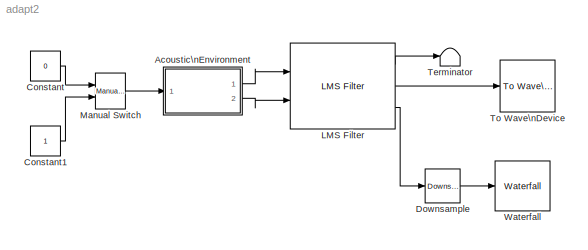
MODEL adapt2
KIND model
CONFIG AbsTol = auto
CONFIG FixedStep = auto
CONFIG MaxStep = auto
CONFIG MinStep = auto
CONFIG RelTol = 1e-3
CONFIG Solver = ode45
CONFIG SolverMode = Auto
CONFIG StartTime = 0.0
CONFIG StopTime = 10.0
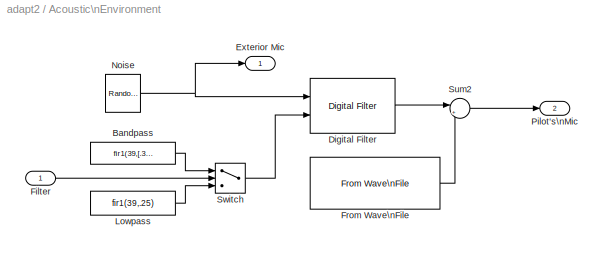
BLOCK [SubSystem] Acoustic\nEnvironment
  Ports = [1, 2]
  TreatAsAtomicUnit = off
BLOCK [Constant] Acoustic\nEnvironment/Bandpass
  OutDataTypeMode = Inherit via back propagation
  ShowAdditionalParam = on
  Value = fir1(39,[.3 .5])
BLOCK [Reference] Acoustic\nEnvironment/Digital Filter  REF=dsparch4/Digital Filter
  AllPoleFiltStruct = Direct form
  BiQuadCoeffs = [1 0.3 0.4 1 0.1 0.2]
  CoeffSource = Input port(s)
  DenCoeffs = [1 0.1]
  FIRFiltStruct = Direct form
  FiltPerSampPopup = One filter per frame
  IC = 0
  ICden = 0
  ICnum = 0
  IIRFiltStruct = Direct form II transposed
  LatticeCoeffs = [0.2 0.4]
  NumCoeffs = [1 2]
  Ports = [2, 1]
  SourceBlock = dsparch4/Digital Filter
  SourceType = Digital Filter
  TypePopup = FIR (all zeros)
  accumFracLength = 30
  accumMode = Same as output
  accumWordLength = 40
  additionalParams = off
  allowOverrides = on
  denIgnore = on
  firstCoeffFracLength = 15
  firstCoeffMode = Same as input
  firstCoeffWordLength = 16
  memoryFracLength = 14
  memoryMode = Same as input
  memoryWordLength = 16
  outputFracLength = 15
  outputMode = Same as input
  outputWordLength = 16
  overflowMode = off
  prodOutputFracLength = 30
  prodOutputMode = Same as output
  prodOutputWordLength = 32
  roundingMode = Floor
  secondCoeffFracLength = 15
  secondCoeffMode = Same as numerator
  secondCoeffWordLength = 16
  showAcc = off
  showCoeff = off
  showMem = off
  showMpy = off
  showOut = off
  thirdCoeffFracLength = 15
  thirdCoeffMode = Same as input
  thirdCoeffWordLength = 16
BLOCK [Outport] Acoustic\nEnvironment/Exterior Mic
  IconDisplay = Port number
BLOCK [Inport] Acoustic\nEnvironment/Filter
  IconDisplay = Port number
BLOCK [Reference] Acoustic\nEnvironment/From Wave\nFile  REF=dspwin32/From Wave\nFile
  FileName = dspafxf_8000
  MinBufSize = 1024
  Ports = [0, 1]
  SamplesPerFrame = 32
  SourceBlock = dspwin32/From Wave\nFile
  SourceType = From Wave File
  bLoop = on
  dType = Single
  firstSampleOutput = off
  lastSampleOutput = off
  restartMode = immediately after last sample
  timesToPlay = inf
BLOCK [Constant] Acoustic\nEnvironment/Lowpass
  OutDataTypeMode = Inherit via back propagation
  ShowAdditionalParam = on
  Value = fir1(39,.25)
BLOCK [Reference] Acoustic\nEnvironment/Noise  REF=dspsrcs4/Random\nSource
  CltLength = 5
  DataType = Single
  Diagnostics = AllowInheritedTsInSrc
  Inherit = off
  Max = 1
  Mean = 0
  Min = -1
  NormMethod = Sum of uniform values
  OutComplex = Real
  Ports = [0, 1]
  RepMode = Specify seed
  SampFrame = 32
  SampMode = Discrete
  SampTime = 1/8000
  Seed = [23341]
  SourceBlock = dspsrcs4/Random\nSource
  SourceType = Random Source
  SrcType = Gaussian
  Var = 1
BLOCK [Outport] Acoustic\nEnvironment/Pilot's\nMic
  IconDisplay = Port number
  Port = 2
BLOCK [Sum] Acoustic\nEnvironment/Sum2
  IconShape = round
  Inputs = |++
  Ports = [2, 1]
BLOCK [Switch] Acoustic\nEnvironment/Switch
  Criteria = u2 ~= 0
  InputSameDT = off
BLOCK [Constant] Constant
  Value = 0
BLOCK [Constant] Constant1
BLOCK [Reference] Downsample  REF=dspsigops/Downsample
  N = 32
  Ports = [1, 1]
  SourceBlock = dspsigops/Downsample
  SourceType = Downsample
  fmode = Maintain input frame size
  ic = 0
  phase = 0
  smode = Allow multirate
BLOCK [Reference] LMS Filter  REF=dspadpt3/LMS Filter
  Adapt = off
  Algo = Normalized LMS
  L = 40
  Ports = [2, 3]
  ShowPortLabels = on
  SourceBlock = dspadpt3/LMS Filter
  SourceType = LMS Filter
  addnparflag = off
  ic = 0
  leakage = 1.0
  mu = 0.002
  resetflag = None
  stepflag = Dialog
  weights = on
BLOCK [Reference] Manual Switch  REF=simulink/Signal\nRouting/Manual Switch
  Ports = [2, 1]
  ShowPortLabels = on
  SourceBlock = simulink/Signal\nRouting/Manual Switch
  SourceType = Manual Switch
  action = 0
  sw = 1
BLOCK [Terminator] Terminator
BLOCK [Reference] To Wave\nDevice  REF=dspwin32/To Wave\nDevice
  Ports = [1]
  SourceBlock = dspwin32/To Wave\nDevice
  SourceType = To Wave Device
  bufDuration = 0.4
  enable24Bit = off
  initDelay = 0.05
  useDefaultDevice = on
  userDeviceID = SoundMAX Digital Audio
BLOCK [Reference] Waterfall  REF=dspsnks4/Waterfall
  AutoExport = off
  AxisColor = 'w'
  AxisGrid = on
  AxisProperties = off
  CMapStr = autumn
  CameraView = [69.4600750684385 564.426060114276 -133.474523953492 0 18.5 3.5 0.616338299486424 -7.9078811427274 1.98411164834144 2.40985953613679 1 18.5 3]
  DisplayProperties = off
  ExportMode = All visible
  FigPos = [243 195 405 320]
  HistoryFull = Overwrite
  HistoryLength = 50
  InportDimsHint = [32 1]
  MLExportName = ExportData
  MouseMode = Orbit
  NumTraces = 6
  OpenScopeAtSimStart = on
  Ports = [1]
  ShowPortLabels = off
  Snapshot = off
  SourceBlock = dspsnks4/Waterfall
  SourceType = Waterfall
  Suspend = off
  SyncSnapshots = off
  TNewest = 1
  TOldest = 0
  TraceProperties = off
  TrigRearmFcn = trigrearm
  TrigRearmMode = Never
  TrigRearmN = 0
  TrigRearmT = 0
  TrigStartFcn = trigbegin
  TrigStartMode = Immediately
  TrigStartN = 0
  TrigStartT = 0
  TrigStopFcn = trigend
  TrigStopMode = Never
  TrigStopN = 1
  TrigStopT = 0.1
  TriggerProperties = off
  UpdateInterval = 1
  XLabel = Amplitude
  XformExpr = (u+1)/2
  XformFcn = abs
  XformMode = None
  XformProperties = on
  YLabel = Samples
  YMax = 0.179
  YMin = -0.188
  ZLabel = Time
LINE Acoustic\nEnvironment/Bandpass:1 -> Acoustic\nEnvironment/Switch:1
LINE Acoustic\nEnvironment/Digital Filter:1 -> Acoustic\nEnvironment/Sum2:1
LINE Acoustic\nEnvironment/Filter:1 -> Acoustic\nEnvironment/Switch:2
LINE Acoustic\nEnvironment/From Wave\nFile:1 -> Acoustic\nEnvironment/Sum2:2
LINE Acoustic\nEnvironment/Lowpass:1 -> Acoustic\nEnvironment/Switch:3
NET Acoustic\nEnvironment/Noise:1 -> Acoustic\nEnvironment/Digital Filter:1, Acoustic\nEnvironment/Exterior Mic:1
LINE Acoustic\nEnvironment/Sum2:1 -> Acoustic\nEnvironment/Pilot's\nMic:1
LINE Acoustic\nEnvironment/Switch:1 -> Acoustic\nEnvironment/Digital Filter:2
LINE Acoustic\nEnvironment:1 -> LMS Filter:1
LINE Acoustic\nEnvironment:2 -> LMS Filter:2
LINE Constant1:1 -> Manual Switch:2
LINE Constant:1 -> Manual Switch:1
LINE Downsample:1 -> Waterfall:1
LINE LMS Filter:1 -> Terminator:1
LINE LMS Filter:2 -> To Wave\nDevice:1
LINE LMS Filter:3 -> Downsample:1
LINE Manual Switch:1 -> Acoustic\nEnvironment:1
note: NET lines group one-source signal fan-out (src -> all destinations, sorted); 1:1 wires keep LINE
